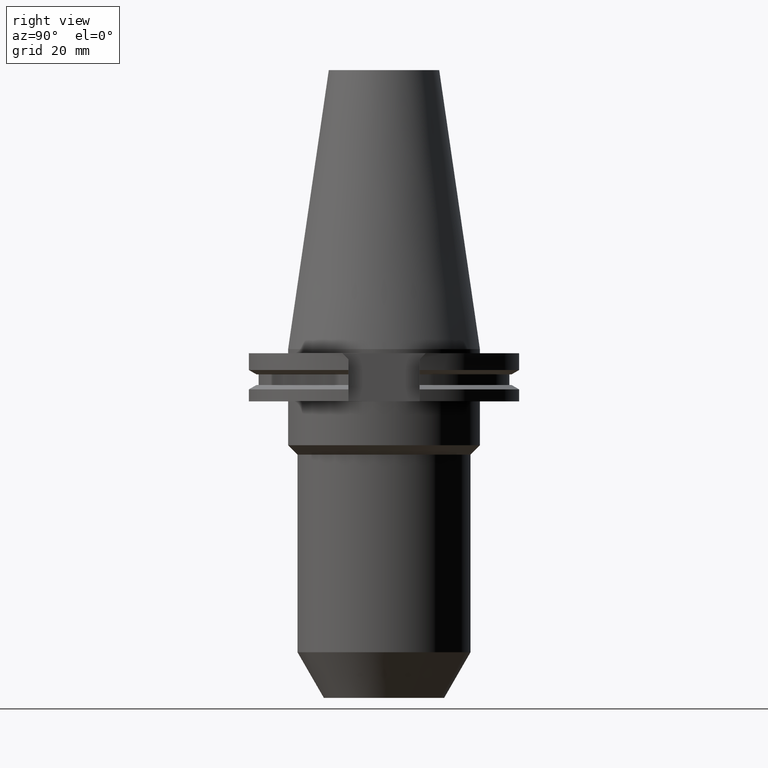
[diagram: clean part render]
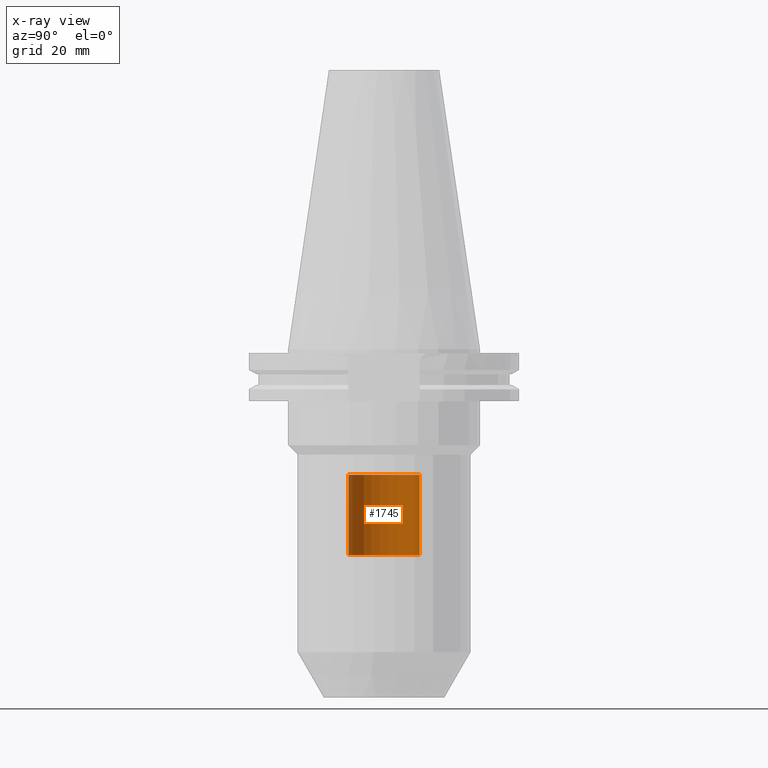
[diagram: x-ray — body ghosted, one internal face saturated and labeled with its STEP entity id]
A machine part, right view, then the same camera in x-ray: the body is ghosted and one INTERNAL B-rep face — a face not visible from any outside direction — is saturated and labeled: STEP entity #1745.
In plain terms, the highlighted cylindrical surface (edge-blend (fillet) strip) has radius 12.95 mm, axis along (0, 0, -1).
Its self-contained STEP definition (entity closure, byte-faithful):
#270=CARTESIAN_POINT('',(0.E0,2.608865076224E-14,-4.58E1));
#271=DIRECTION('',(0.E0,0.E0,1.E0));
#272=DIRECTION('',(0.E0,1.E0,0.E0));
#273=AXIS2_PLACEMENT_3D('',#270,#271,#272);
#294=DIRECTION('',(0.E0,0.E0,1.E0));
#295=VECTOR('',#294,2.92E1);
#296=CARTESIAN_POINT('',(0.E0,1.295E1,-7.5E1));
#297=LINE('',#296,#295);
#301=DIRECTION('',(0.E0,0.E0,1.E0));
#302=VECTOR('',#301,2.92E1);
#303=CARTESIAN_POINT('',(0.E0,-1.295E1,-7.5E1));
#304=LINE('',#303,#302);
#308=CARTESIAN_POINT('',(0.E0,2.608865076224E-14,-7.5E1));
#309=DIRECTION('',(0.E0,0.E0,-1.E0));
#310=DIRECTION('',(0.E0,-1.E0,0.E0));
#311=AXIS2_PLACEMENT_3D('',#308,#309,#310);
#1302=CARTESIAN_POINT('',(0.E0,-1.295E1,-4.58E1));
#1303=CARTESIAN_POINT('',(0.E0,1.295E1,-4.58E1));
#1304=VERTEX_POINT('',#1302);
#1305=VERTEX_POINT('',#1303);
#1306=CARTESIAN_POINT('',(0.E0,1.295E1,-7.5E1));
#1307=VERTEX_POINT('',#1306);
#1308=CARTESIAN_POINT('',(0.E0,-1.295E1,-7.5E1));
#1309=VERTEX_POINT('',#1308);
#1733=CARTESIAN_POINT('',(0.E0,2.608865076224E-14,1.1303E2));
#1734=DIRECTION('',(0.E0,0.E0,-1.E0));
#1735=DIRECTION('',(0.E0,-1.E0,0.E0));
#1736=AXIS2_PLACEMENT_3D('',#1733,#1734,#1735);
#1737=CYLINDRICAL_SURFACE('',#1736,1.295E1);
#1738=ORIENTED_EDGE('',*,*,#1723,.F.);
#1740=ORIENTED_EDGE('',*,*,#1739,.F.);
#1741=ORIENTED_EDGE('',*,*,#1726,.T.);
#1742=ORIENTED_EDGE('',*,*,#1709,.F.);
#1743=EDGE_LOOP('',(#1738,#1740,#1741,#1742));
#1744=FACE_OUTER_BOUND('',#1743,.F.);
#274=CIRCLE('',#273,1.295E1);
#312=CIRCLE('',#311,1.295E1);
#1709=EDGE_CURVE('',#1305,#1304,#274,.T.);
#1723=EDGE_CURVE('',#1307,#1305,#297,.T.);
#1726=EDGE_CURVE('',#1309,#1304,#304,.T.);
#1739=EDGE_CURVE('',#1309,#1307,#312,.T.);
#1745=ADVANCED_FACE('',(#1744),#1737,.F.);